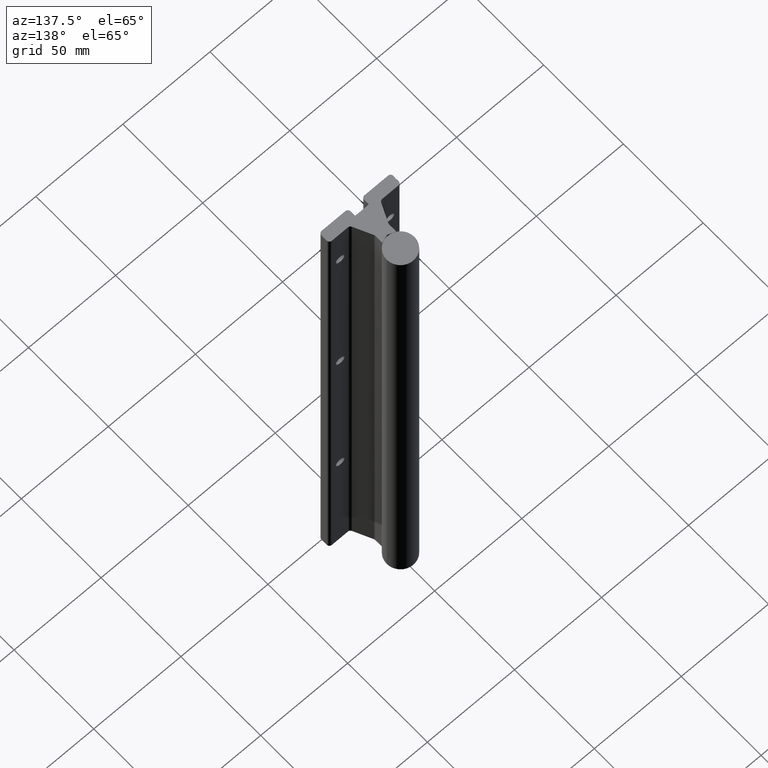
[diagram: clean part render]
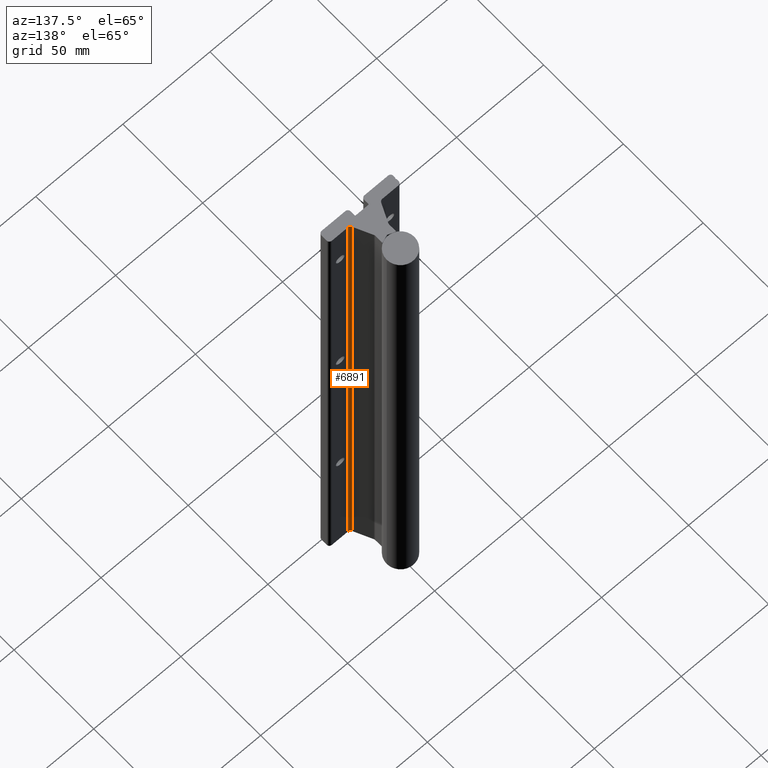
[diagram: same view with one face highlighted and labeled with its STEP entity id]
A machine part, auxiliary view. The second image highlights one B-rep face of the part: STEP entity #6891.
In plain terms, the highlighted cylindrical surface (edge-blend (fillet) strip) has radius 1.5875 mm, axis along (0, 0, 1).
Its self-contained STEP definition (entity closure, byte-faithful):
#44 = ORIENTED_EDGE ( 'NONE', *, *, #3350, .F. ) ;
#222 = DIRECTION ( 'NONE',  ( 0.000000000000000000, 0.000000000000000000, 1.000000000000000000 ) ) ;
#342 = CARTESIAN_POINT ( 'NONE',  ( 0.3302890422999967268, 0.2860863586999988772, -13.83356500330709338 ) ) ;
#548 = CARTESIAN_POINT ( 'NONE',  ( 0.3302890422999967268, 0.2860863586999988772, -12.00000000000000178 ) ) ;
#884 = DIRECTION ( 'NONE',  ( 0.000000000000000000, 0.000000000000000000, 1.000000000000000000 ) ) ;
#1085 = CYLINDRICAL_SURFACE ( 'NONE', #3107, 0.06249999999999823752 ) ;
#1171 = DIRECTION ( 'NONE',  ( -0.000000000000000000, -0.000000000000000000, -1.000000000000000000 ) ) ;
#1348 = VERTEX_POINT ( 'NONE', #4264 ) ;
#1685 = FACE_OUTER_BOUND ( 'NONE', #1953, .T. ) ;
#1953 = EDGE_LOOP ( 'NONE', ( #6318, #6722, #44, #7285 ) ) ;
#1984 = VERTEX_POINT ( 'NONE', #4439 ) ;
#2003 = CARTESIAN_POINT ( 'NONE',  ( 0.3869332790172018144, 0.3124999999999979461, -12.00000000000000178 ) ) ;
#2272 = LINE ( 'NONE', #3913, #3977 ) ;
#2291 = CIRCLE ( 'NONE', #6863, 0.06249999999999823752 ) ;
#2457 = CARTESIAN_POINT ( 'NONE',  ( 0.3869332790172018144, 0.3124999999999979461, 0.000000000000000000 ) ) ;
#2471 = VERTEX_POINT ( 'NONE', #7636 ) ;
#2567 = CIRCLE ( 'NONE', #6372, 0.06249999999999823752 ) ;
#2750 = VERTEX_POINT ( 'NONE', #548 ) ;
#3107 = AXIS2_PLACEMENT_3D ( 'NONE', #3205, #222, #5728 ) ;
#3205 = CARTESIAN_POINT ( 'NONE',  ( 0.3869332790172018144, 0.3124999999999979461, -13.83356500330709338 ) ) ;
#3350 = EDGE_CURVE ( 'NONE', #2471, #1984, #2567, .T. ) ;
#3420 = VECTOR ( 'NONE', #884, 39.37007874015748143 ) ;
#3457 = EDGE_CURVE ( 'NONE', #2750, #1984, #3909, .T. ) ;
#3603 = DIRECTION ( 'NONE',  ( 1.000000000000000000, 0.000000000000000000, 0.000000000000000000 ) ) ;
#3909 = LINE ( 'NONE', #342, #3420 ) ;
#3913 = CARTESIAN_POINT ( 'NONE',  ( 0.3869332788999988448, 0.2499999999999996947, -13.83356500330709338 ) ) ;
#3977 = VECTOR ( 'NONE', #5248, 39.37007874015748143 ) ;
#4264 = CARTESIAN_POINT ( 'NONE',  ( 0.3869332788999988448, 0.2499999999999996947, -12.00000000000000178 ) ) ;
#4289 = DIRECTION ( 'NONE',  ( 0.000000000000000000, 0.000000000000000000, 1.000000000000000000 ) ) ;
#4439 = CARTESIAN_POINT ( 'NONE',  ( 0.3302890422999967268, 0.2860863586999988772, 0.000000000000000000 ) ) ;
#5248 = DIRECTION ( 'NONE',  ( 0.000000000000000000, 0.000000000000000000, 1.000000000000000000 ) ) ;
#5656 = DIRECTION ( 'NONE',  ( 1.000000000000000000, 0.000000000000000000, 0.000000000000000000 ) ) ;
#5728 = DIRECTION ( 'NONE',  ( 1.000000000000000000, 0.000000000000000000, 0.000000000000000000 ) ) ;
#5814 = EDGE_CURVE ( 'NONE', #2750, #1348, #2291, .T. ) ;
#6318 = ORIENTED_EDGE ( 'NONE', *, *, #5814, .F. ) ;
#6372 = AXIS2_PLACEMENT_3D ( 'NONE', #2457, #1171, #3603 ) ;
#6722 = ORIENTED_EDGE ( 'NONE', *, *, #3457, .T. ) ;
#6794 = EDGE_CURVE ( 'NONE', #1348, #2471, #2272, .T. ) ;
#6863 = AXIS2_PLACEMENT_3D ( 'NONE', #2003, #4289, #5656 ) ;
#6891 = ADVANCED_FACE ( 'NONE', ( #1685 ), #1085, .F. ) ;
#7285 = ORIENTED_EDGE ( 'NONE', *, *, #6794, .F. ) ;
#7636 = CARTESIAN_POINT ( 'NONE',  ( 0.3869332788999988448, 0.2499999999999997224, 0.000000000000000000 ) ) ;